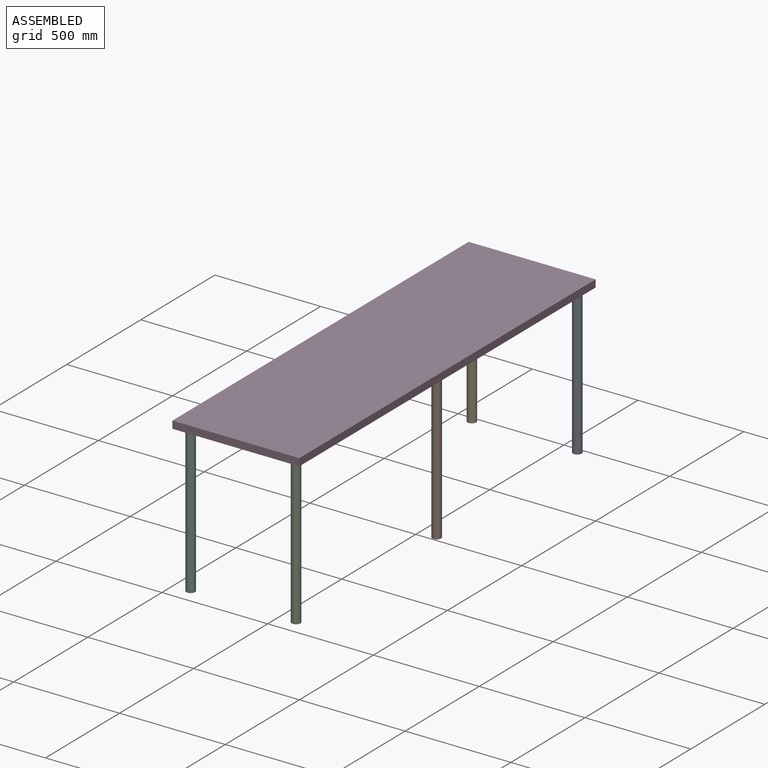
[diagram: assembled view]
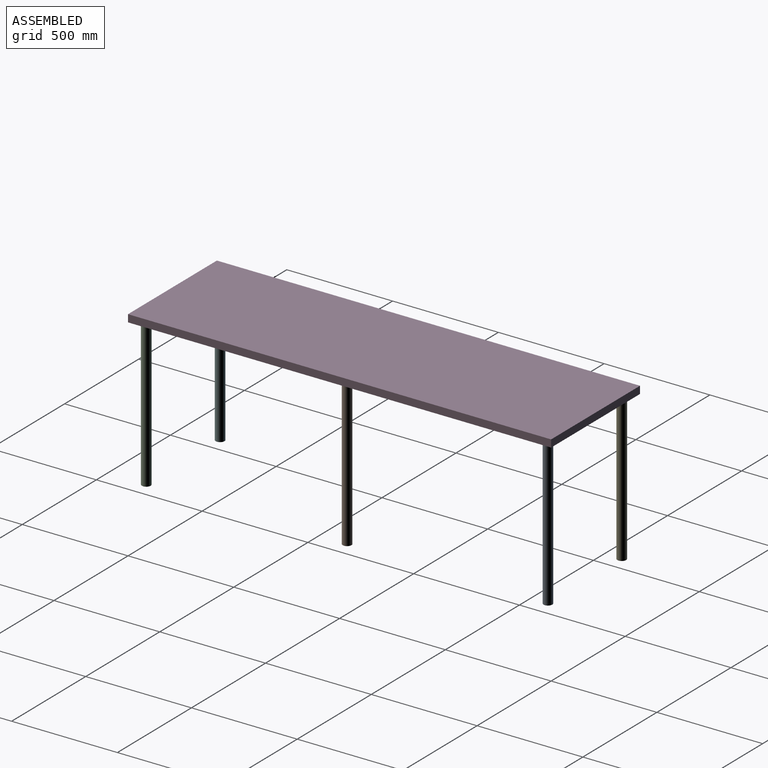
[diagram: assembled view, second angle]
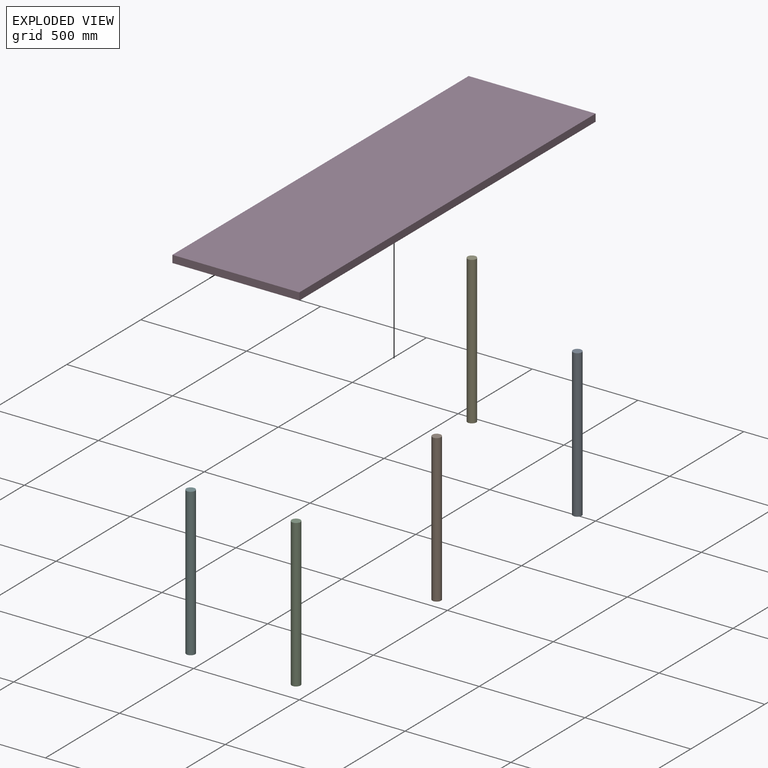
[diagram: exploded view]
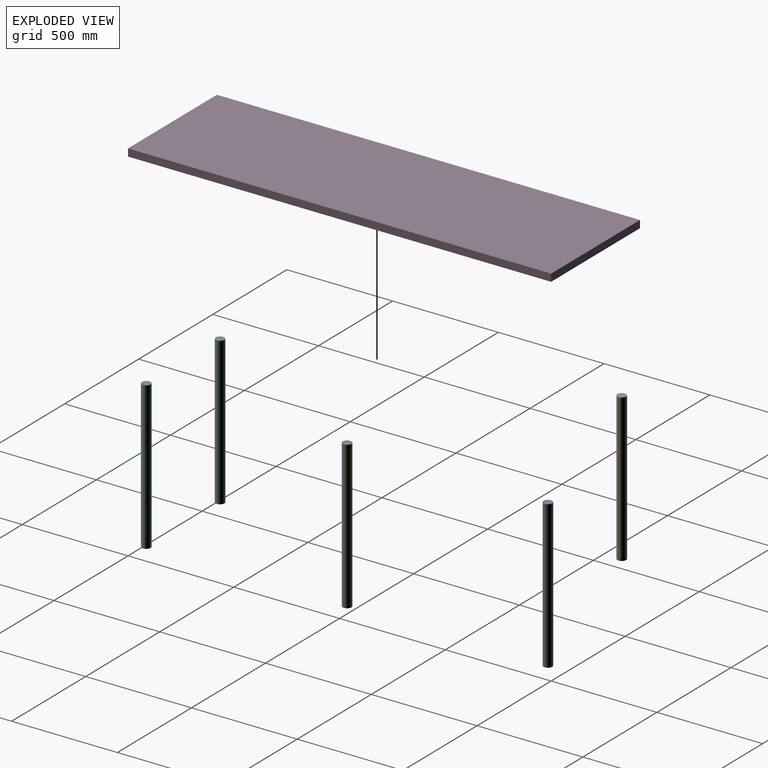
[diagram: exploded view, second angle]
ASSEMBLY  parts=6 mates=10
PART A: 3 faces, bbox 41.3x41.3x698.5 mm
  f0: cylinder r=20.64mm len=698.5mm, axis (0,0,-1), area 90574mm2, adj f1,f2
  f1: plane 41.28x41.28mm, normal (0,0,1), area 1338mm2, adj f0
  f2: plane 41.28x41.28mm, normal (0,0,-1), area 1338mm2, adj f0
PART B: same geometry as A
PART C: same geometry as A
PART D: 16 faces, bbox 2000.3x600.1x34.9 mm
  f0: plane 2000.25x34.93mm, normal (0,1,0), area 69858.7mm2, adj f1,f3,f4,f5
  f1: plane 600.08x34.93mm, normal (-1,0,0), area 20957.6mm2, adj f0,f2,f4,f5
  f2: plane 2000.25x34.93mm, normal (0,-1,0), area 69858.7mm2, adj f1,f3,f4,f5
  f3: plane 600.08x34.93mm, normal (1,0,0), area 20957.6mm2, adj f0,f2,f4,f5
  f4: plane 2000.25x600.08mm, normal (0,0,1), area 1200300mm2, adj f0,f1,f2,f3
  f5: plane 2000.25x600.08mm, normal (0,0,-1), area 1199666.6mm2, adj f0,f1,f2,f3,f6,f8,f10,f12
  f6: cylinder r=6.35mm len=25.4mm, axis (0,0,-1), area 1013.4mm2, adj f5,f7
  f7: plane 12.7x12.7mm, normal (0,0,-1), area 126.7mm2, adj f6
  f8: cylinder r=6.35mm len=25.4mm, axis (0,0,-1), area 1013.4mm2, adj f5,f9
  f9: plane 12.7x12.7mm, normal (0,0,-1), area 126.7mm2, adj f8
  f10: cylinder r=6.35mm len=25.4mm, axis (0,0,-1), area 1013.4mm2, adj f5,f11
  f11: plane 12.7x12.7mm, normal (0,0,-1), area 126.7mm2, adj f10
  f12: cylinder r=6.35mm len=25.4mm, axis (0,0,-1), area 1013.4mm2, adj f5,f13
  f13: plane 12.7x12.7mm, normal (0,0,-1), area 126.7mm2, adj f12
  f14: cylinder r=6.35mm len=25.4mm, axis (0,0,-1), area 1013.4mm2, adj f5,f15
  f15: plane 12.7x12.7mm, normal (0,0,-1), area 126.7mm2, adj f14
PART E: same geometry as A
PART F: same geometry as A
PLACE A t=(-50.8,1949.45,-733.42)mm
PLACE B rot(axis=(0,0,-1),88.2deg) t=(-50.8,1000.12,-733.42)mm
PLACE C rot(axis=(1,0,0),180deg) t=(-50.8,50.8,-34.93)mm
PLACE D rot(axis=(0,0,-1),90deg) t=(-300.04,1000.12,-34.93)mm
PLACE E rot(axis=(1,0,0),180deg) t=(-549.28,1949.45,-34.93)mm
PLACE F rot(axis=(1,0,0),180deg) t=(-549.28,50.8,-34.93)mm
MATE cylindrical B.f0 <-> D.f14  axis (0,0,-1) through (-50.8,1000.12,-384.18)mm
MATE planar A.f0 <-> D.f5  axis (0,0,-1) through (-50.8,1949.45,-34.92)mm
MATE planar E.f0 <-> D.f5  axis (0,0,1) through (-549.28,1949.45,-34.93)mm
MATE planar D.f5 <-> B.f0  axis (0,0,-1) through (-300.06,1000.12,-34.93)mm
MATE cylindrical D.f6 <-> E.f0  axis (0,0,-1) through (-549.27,1949.45,-34.93)mm
MATE cylindrical D.f8 <-> C.f0  axis (0,0,-1) through (-50.8,50.8,-34.93)mm
MATE planar F.f0 <-> D.f5  axis (0,0,1) through (-549.28,50.8,-34.93)mm
MATE cylindrical F.f0 <-> D.f10  axis (0,0,1) through (-549.28,50.8,-384.18)mm
MATE cylindrical A.f0 <-> D.f12  axis (0,0,-1) through (-50.8,1949.45,-384.18)mm
MATE planar C.f0 <-> D.f5  axis (0,0,1) through (-50.8,50.8,-34.93)mm
